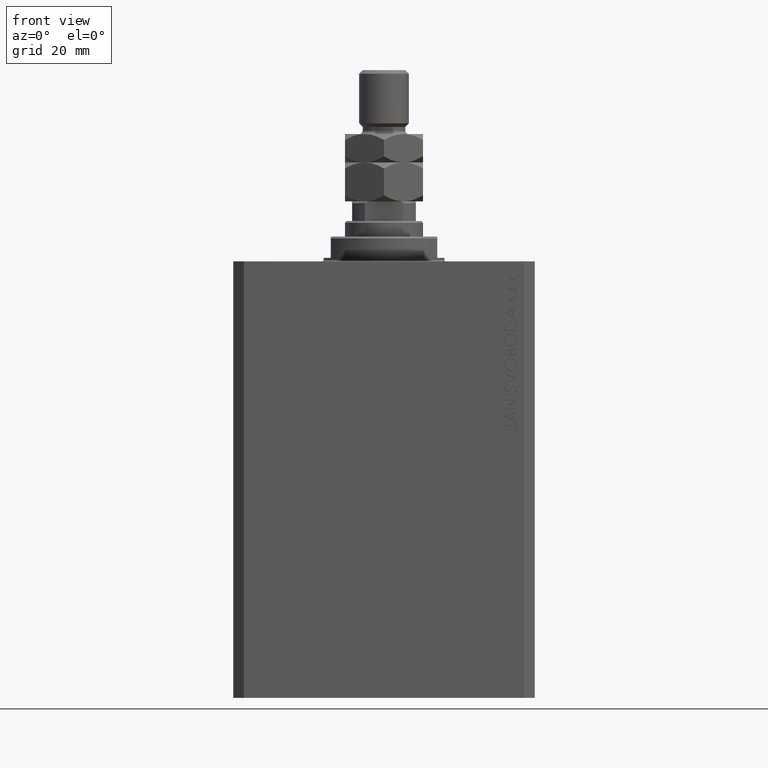
[diagram: clean part render]
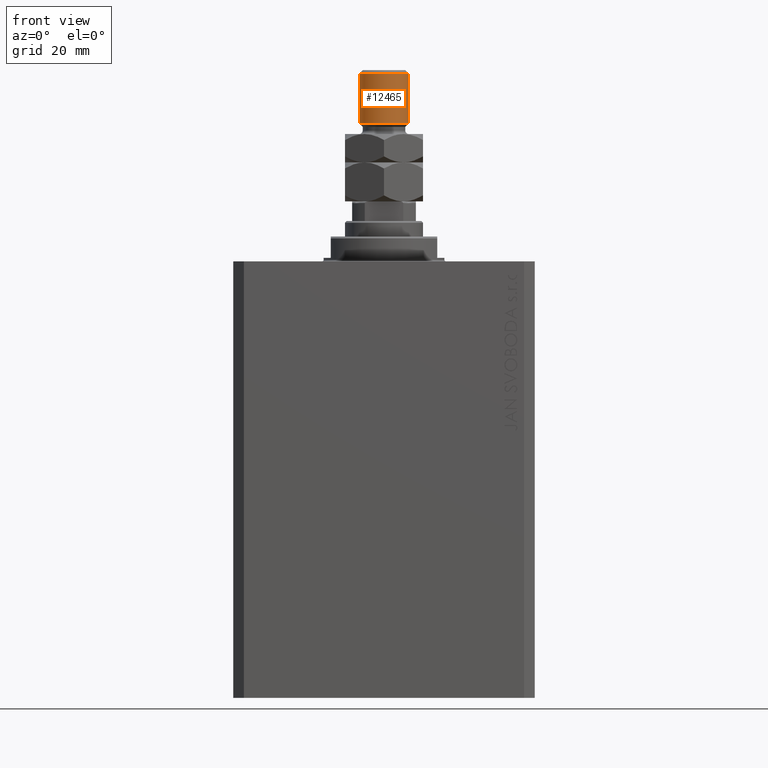
[diagram: same view with one face highlighted and labeled with its STEP entity id]
A machine part, front view. The second image highlights one B-rep face of the part: STEP entity #12465.
In plain terms, the highlighted cylindrical surface (edge-blend (fillet) strip) has radius 7 mm, axis along (-0, -0, -1).
Its self-contained STEP definition (entity closure, byte-faithful):
#632 = ORIENTED_EDGE ( 'NONE', *, *, #23560, .F. ) ;
#1187 = CARTESIAN_POINT ( 'NONE',  ( 7.000000000000000000, 8.572527594031473190E-16, 37.00000000000000000 ) ) ;
#1225 = DIRECTION ( 'NONE',  ( -0.000000000000000000, -0.000000000000000000, -1.000000000000000000 ) ) ;
#1796 = CYLINDRICAL_SURFACE ( 'NONE', #26025, 7.000000000000000000 ) ;
#1926 = EDGE_LOOP ( 'NONE', ( #632, #24702, #32386, #43842 ) ) ;
#1963 = CARTESIAN_POINT ( 'NONE',  ( -7.000000000000000000, 0.000000000000000000, 22.00000000000000355 ) ) ;
#2451 = DIRECTION ( 'NONE',  ( -0.000000000000000000, -0.000000000000000000, -1.000000000000000000 ) ) ;
#4686 = LINE ( 'NONE', #1187, #19399 ) ;
#9453 = LINE ( 'NONE', #46108, #41058 ) ;
#10946 = DIRECTION ( 'NONE',  ( 1.000000000000000000, 0.000000000000000000, 0.000000000000000000 ) ) ;
#12465 = ADVANCED_FACE ( 'NONE', ( #36832 ), #1796, .T. ) ;
#15807 = DIRECTION ( 'NONE',  ( -1.000000000000000000, 0.000000000000000000, 0.000000000000000000 ) ) ;
#19399 = VECTOR ( 'NONE', #1225, 1000.000000000000000 ) ;
#20866 = EDGE_CURVE ( 'NONE', #37578, #30991, #9453, .T. ) ;
#23560 = EDGE_CURVE ( 'NONE', #36283, #38177, #4686, .T. ) ;
#24099 = DIRECTION ( 'NONE',  ( 1.000000000000000000, 0.000000000000000000, 0.000000000000000000 ) ) ;
#24370 = CIRCLE ( 'NONE', #37752, 7.000000000000000000 ) ;
#24702 = ORIENTED_EDGE ( 'NONE', *, *, #34767, .T. ) ;
#26025 = AXIS2_PLACEMENT_3D ( 'NONE', #30268, #29353, #15807 ) ;
#29353 = DIRECTION ( 'NONE',  ( -0.000000000000000000, -0.000000000000000000, -1.000000000000000000 ) ) ;
#30268 = CARTESIAN_POINT ( 'NONE',  ( 0.000000000000000000, 0.000000000000000000, 37.00000000000000000 ) ) ;
#30865 = DIRECTION ( 'NONE',  ( -0.000000000000000000, -0.000000000000000000, 1.000000000000000000 ) ) ;
#30991 = VERTEX_POINT ( 'NONE', #1963 ) ;
#32302 = EDGE_CURVE ( 'NONE', #30991, #38177, #34946, .T. ) ;
#32386 = ORIENTED_EDGE ( 'NONE', *, *, #20866, .T. ) ;
#34767 = EDGE_CURVE ( 'NONE', #36283, #37578, #24370, .T. ) ;
#34946 = CIRCLE ( 'NONE', #40896, 7.000000000000000000 ) ;
#35479 = DIRECTION ( 'NONE',  ( 0.000000000000000000, 0.000000000000000000, -1.000000000000000000 ) ) ;
#36072 = CARTESIAN_POINT ( 'NONE',  ( -7.000000000000000000, 0.000000000000000000, 35.99999999999999289 ) ) ;
#36283 = VERTEX_POINT ( 'NONE', #45882 ) ;
#36832 = FACE_OUTER_BOUND ( 'NONE', #1926, .T. ) ;
#37578 = VERTEX_POINT ( 'NONE', #36072 ) ;
#37752 = AXIS2_PLACEMENT_3D ( 'NONE', #42478, #35479, #10946 ) ;
#38177 = VERTEX_POINT ( 'NONE', #42959 ) ;
#40896 = AXIS2_PLACEMENT_3D ( 'NONE', #41836, #30865, #24099 ) ;
#41058 = VECTOR ( 'NONE', #2451, 1000.000000000000000 ) ;
#41836 = CARTESIAN_POINT ( 'NONE',  ( 0.000000000000000000, 0.000000000000000000, 22.00000000000000355 ) ) ;
#42478 = CARTESIAN_POINT ( 'NONE',  ( 0.000000000000000000, 0.000000000000000000, 35.99999999999999289 ) ) ;
#42959 = CARTESIAN_POINT ( 'NONE',  ( 7.000000000000000000, 8.572527594031473190E-16, 22.00000000000000355 ) ) ;
#43842 = ORIENTED_EDGE ( 'NONE', *, *, #32302, .T. ) ;
#45882 = CARTESIAN_POINT ( 'NONE',  ( 7.000000000000000000, 8.572527594031473190E-16, 35.99999999999999289 ) ) ;
#46108 = CARTESIAN_POINT ( 'NONE',  ( -7.000000000000000000, 0.000000000000000000, 37.00000000000000000 ) ) ;